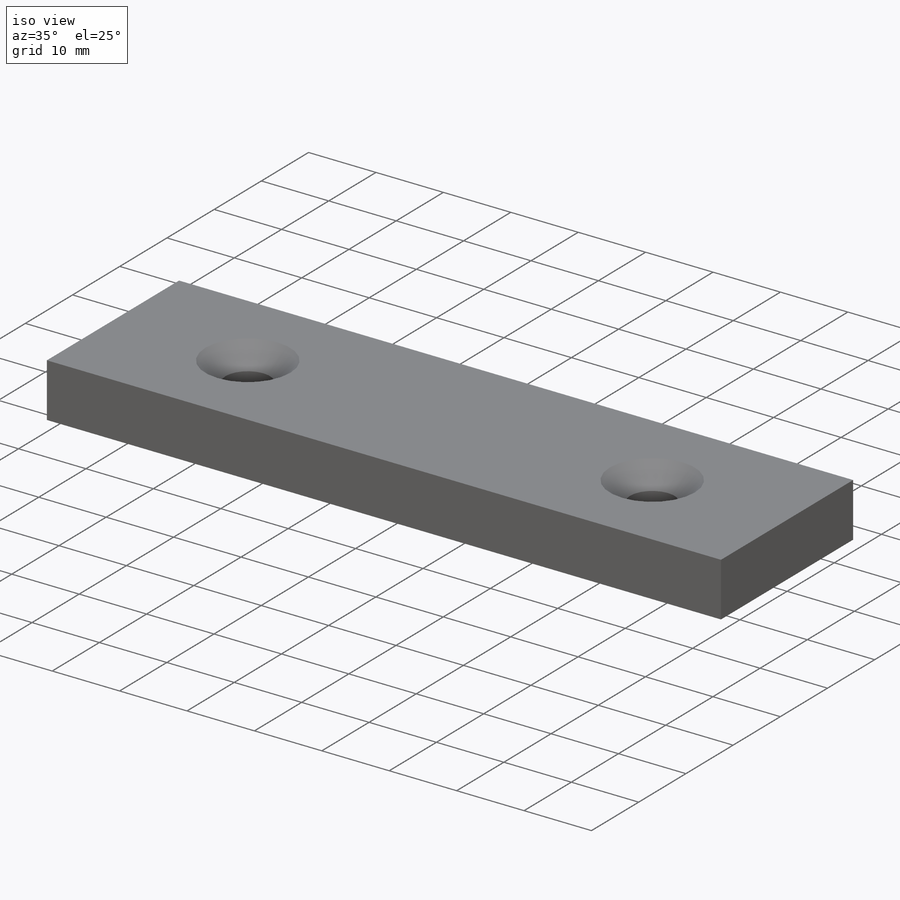
[diagram: iso view]
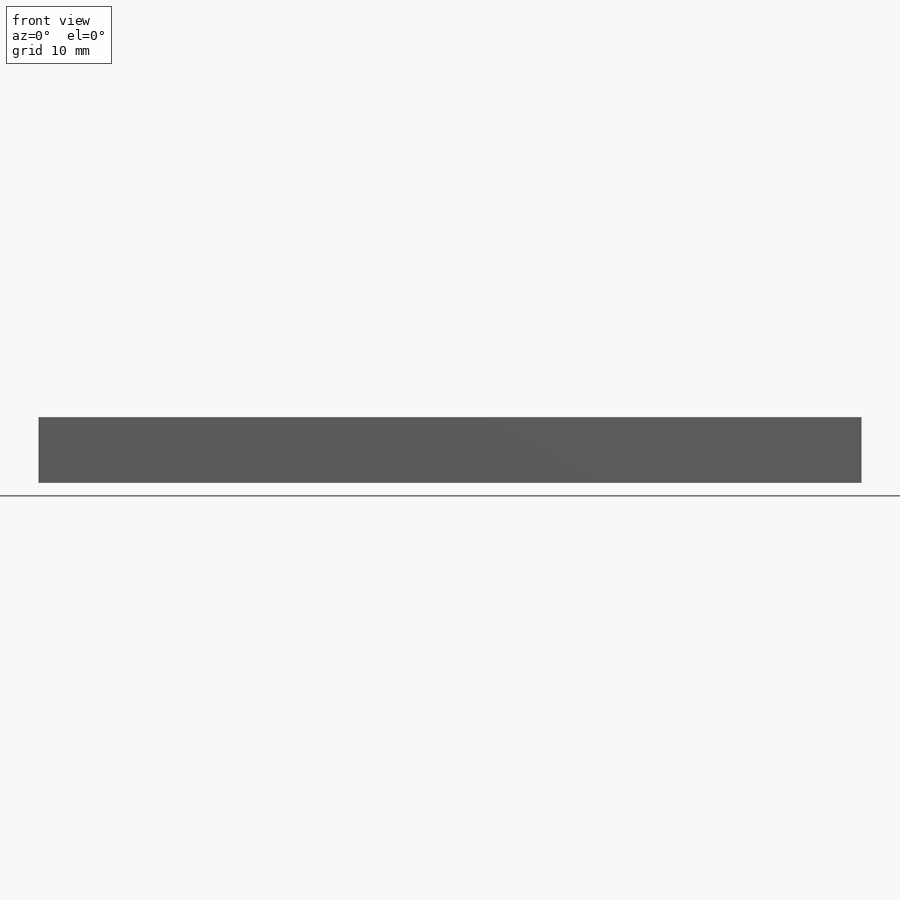
[diagram: front view]
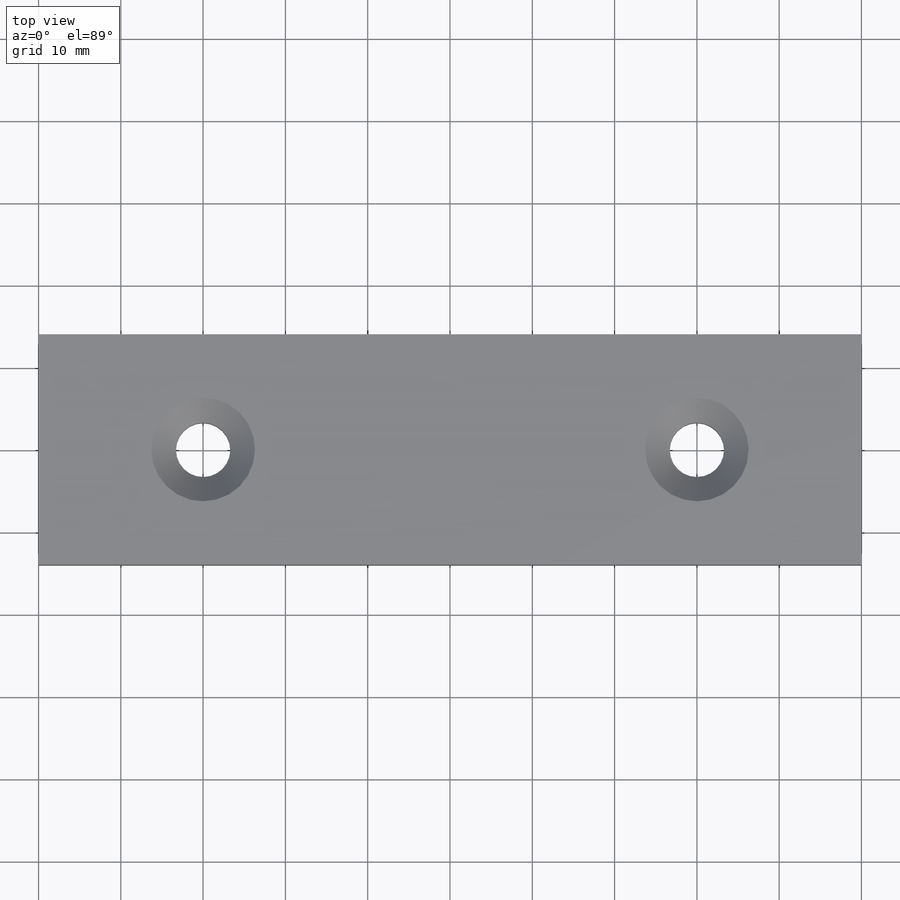
[diagram: top view]
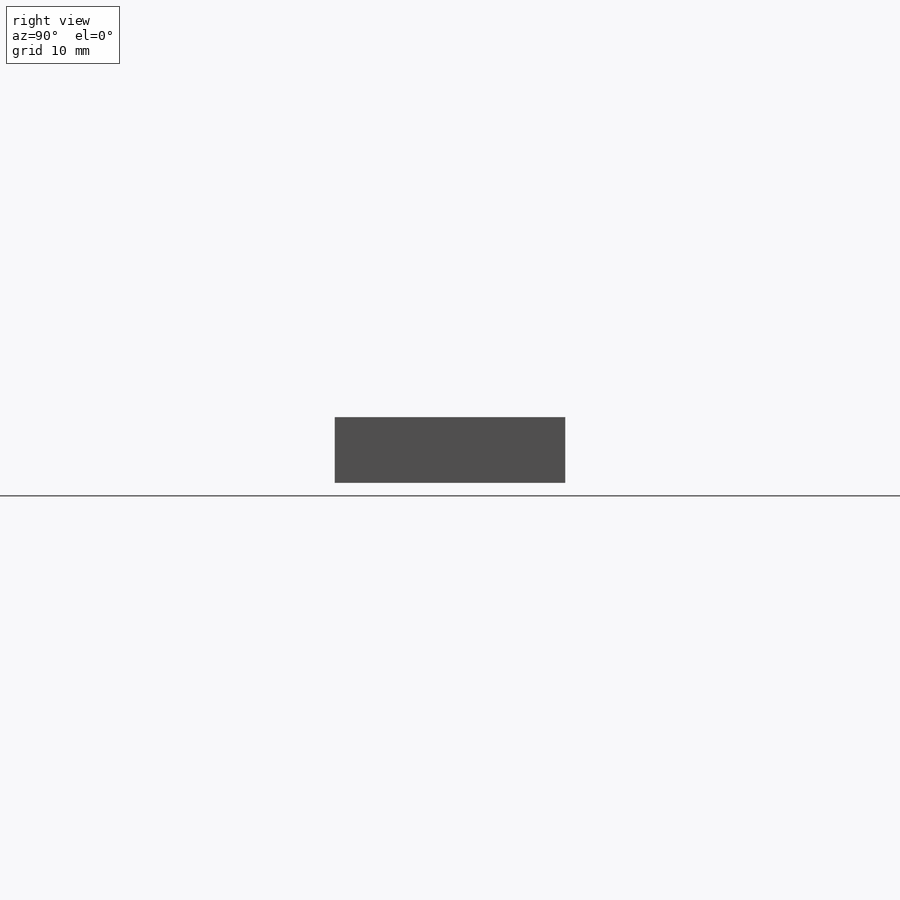
[diagram: right view]
SOLIDWORKS PART (.sldprt)
format: sldprt  version: not decoded by parser v0  size: 166,400 bytes
history: native  units: mm
features: sketch x4, material x1, extrude x1, hole x1 (+13 scaffold rows collapsed)
feature tree (20):
  scaffold x13  (default folders/planes/origin — collapsed)
  material  "Material <not specified>"
  sketch  "Sketch1"  dims[D1=100.0mm D2=28.0mm]
  extrude  "Boss-Extrude1"  Depth=8mm
  sketch  "Sketch2"  dims[D1=60.0mm]
  hole  "CSK for M6 Flat Head Machine Screw1"  Diameter=6.6mm Depth=8mm
  sketch  "Sketch4"
  sketch  "Sketch3"  dims[hole-wizard template sketch: 55 standard entries collapsed; hole parameters kept: c17.Thru Hole Depth=8.0mm c17.Near C'Sink Dia.=12.6mm c17.D4=~3.666174mm c17.Near C'Sink Angle=90.0deg]
decode coverage: 5 of 6 modeling features carry decoded parameters
note: ~ marks probable driven/reference dimensions
note: suppression state not decoded; provenance and decode notes live in map.json
